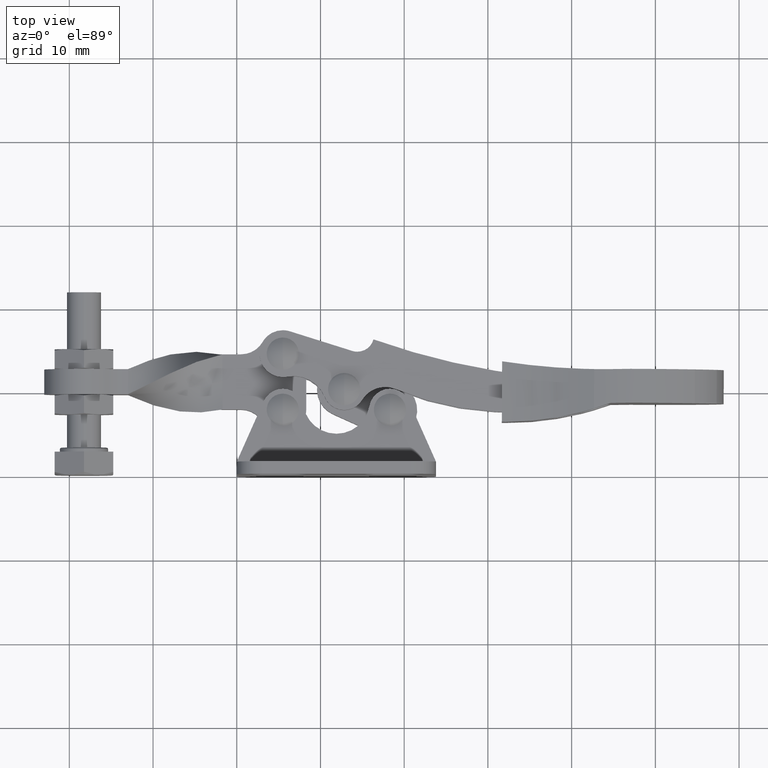
[diagram: clean part render]
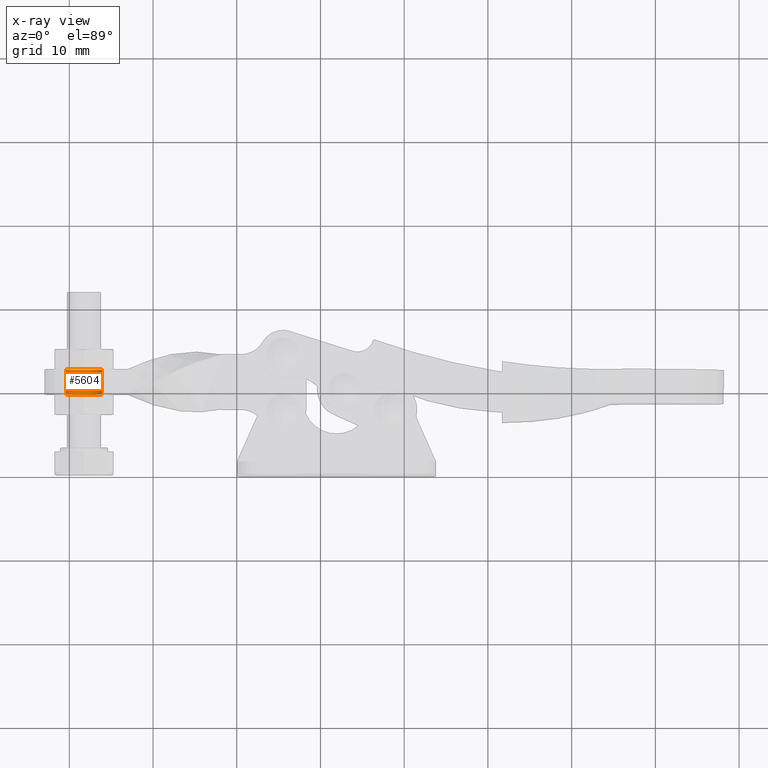
[diagram: x-ray — body ghosted, one internal face saturated and labeled with its STEP entity id]
A machine part, top view, then the same camera in x-ray: the body is ghosted and one INTERNAL B-rep face — a face not visible from any outside direction — is saturated and labeled: STEP entity #5604.
In plain terms, the highlighted cylindrical surface (edge-blend (fillet) strip) has radius 2.15 mm, axis along (0, 1, 0).
Its self-contained STEP definition (entity closure, byte-faithful):
#30 = ORIENTED_EDGE ( 'NONE', *, *, #7220, .T. ) ;
#246 = AXIS2_PLACEMENT_3D ( 'NONE', #7519, #7504, #7542 ) ;
#293 = VECTOR ( 'NONE', #8567, 1000.000000000000000 ) ;
#420 = AXIS2_PLACEMENT_3D ( 'NONE', #4977, #4956, #4942 ) ;
#1354 = ORIENTED_EDGE ( 'NONE', *, *, #7152, .F. ) ;
#1616 = CARTESIAN_POINT ( 'NONE',  ( -18.25000000000122900, 9.650000000000865400, -1.500000000000009300 ) ) ;
#1752 = VERTEX_POINT ( 'NONE', #8016 ) ;
#1851 = CIRCLE ( 'NONE', #420, 2.150000000000012800 ) ;
#2126 = FACE_OUTER_BOUND ( 'NONE', #8992, .T. ) ;
#2838 = ORIENTED_EDGE ( 'NONE', *, *, #7641, .F. ) ;
#3196 = AXIS2_PLACEMENT_3D ( 'NONE', #1616, #3474, #3568 ) ;
#3210 = CYLINDRICAL_SURFACE ( 'NONE', #246, 2.150000000000012800 ) ;
#3314 = VERTEX_POINT ( 'NONE', #7472 ) ;
#3474 = DIRECTION ( 'NONE',  ( -5.545376962338850800E-019, -1.000000000000000000, -3.441691376337985300E-015 ) ) ;
#3568 = DIRECTION ( 'NONE',  ( 0.0000000000000000000, -3.227392513445203400E-015, 1.000000000000000000 ) ) ;
#3739 = LINE ( 'NONE', #8911, #8824 ) ;
#4724 = VERTEX_POINT ( 'NONE', #7048 ) ;
#4833 = ORIENTED_EDGE ( 'NONE', *, *, #6581, .T. ) ;
#4942 = DIRECTION ( 'NONE',  ( 0.0000000000000000000, -3.227392513445203400E-015, 1.000000000000000000 ) ) ;
#4956 = DIRECTION ( 'NONE',  ( -5.545376962338850800E-019, -1.000000000000000000, -3.441691376337985300E-015 ) ) ;
#4977 = CARTESIAN_POINT ( 'NONE',  ( -18.25000000000122900, 12.65000000000086700, -1.499999999999998900 ) ) ;
#5063 = CIRCLE ( 'NONE', #3196, 2.150000000000012800 ) ;
#5411 = CARTESIAN_POINT ( 'NONE',  ( -16.10000000000121600, 12.65000000000086700, -1.500000000000002000 ) ) ;
#5604 = ADVANCED_FACE ( 'NONE', ( #2126 ), #3210, .F. ) ;
#5989 = VERTEX_POINT ( 'NONE', #5411 ) ;
#6581 = EDGE_CURVE ( 'NONE', #3314, #4724, #5063, .T. ) ;
#7048 = CARTESIAN_POINT ( 'NONE',  ( -16.10000000000121600, 9.650000000000865400, -1.500000000000002000 ) ) ;
#7152 = EDGE_CURVE ( 'NONE', #3314, #1752, #3739, .T. ) ;
#7220 = EDGE_CURVE ( 'NONE', #4724, #5989, #8762, .T. ) ;
#7472 = CARTESIAN_POINT ( 'NONE',  ( -20.40000000000124200, 9.650000000000865400, -1.500000000000005800 ) ) ;
#7504 = DIRECTION ( 'NONE',  ( 5.545376962338850800E-019, 1.000000000000000000, 3.441691376337985300E-015 ) ) ;
#7519 = CARTESIAN_POINT ( 'NONE',  ( -18.25000000000122900, 9.650000000000865400, -1.500000000000009100 ) ) ;
#7542 = DIRECTION ( 'NONE',  ( -1.000000000000000000, 0.0000000000000000000, -8.068481283613008500E-016 ) ) ;
#7641 = EDGE_CURVE ( 'NONE', #1752, #5989, #1851, .T. ) ;
#8016 = CARTESIAN_POINT ( 'NONE',  ( -20.40000000000124200, 12.65000000000086700, -1.500000000000005800 ) ) ;
#8461 = CARTESIAN_POINT ( 'NONE',  ( -16.10000000000121600, 9.650000000000865400, -1.500000000000007100 ) ) ;
#8567 = DIRECTION ( 'NONE',  ( 5.545376962338850800E-019, 1.000000000000000000, 3.441691376337985300E-015 ) ) ;
#8762 = LINE ( 'NONE', #8461, #293 ) ;
#8824 = VECTOR ( 'NONE', #8904, 1000.000000000000000 ) ;
#8904 = DIRECTION ( 'NONE',  ( 5.545376962338850800E-019, 1.000000000000000000, 3.441691376337985300E-015 ) ) ;
#8911 = CARTESIAN_POINT ( 'NONE',  ( -20.40000000000124200, 9.650000000000865400, -1.500000000000010900 ) ) ;
#8992 = EDGE_LOOP ( 'NONE', ( #4833, #30, #2838, #1354 ) ) ;